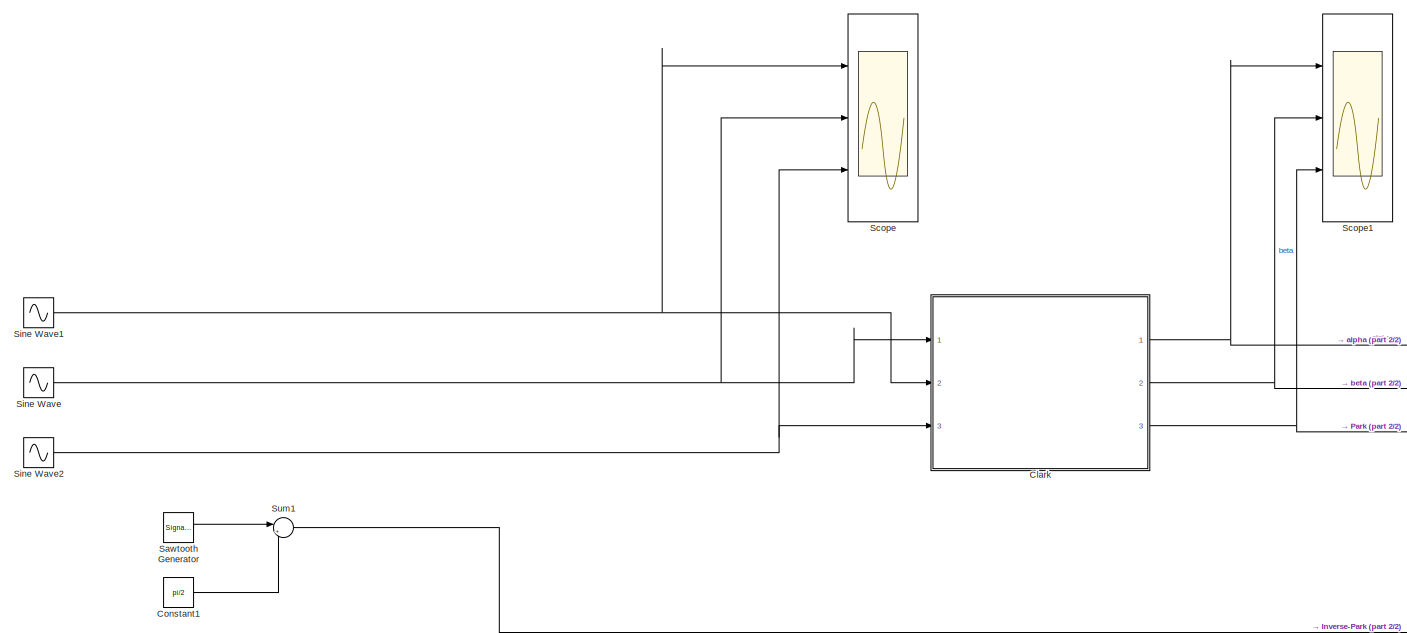
[diagram: root canvas - part 1/2, left side, full height]
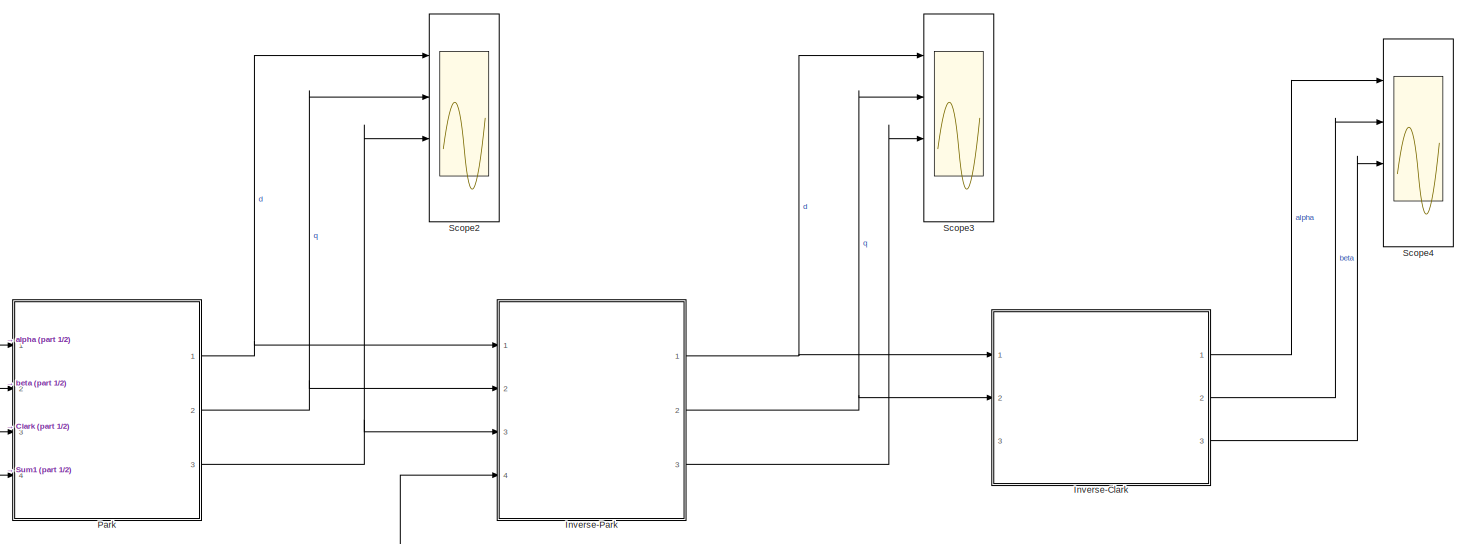
[diagram: root canvas - part 2/2, right side, full height]
MODEL slx_5975b5542c4c
KIND model
CONFIG AbsTol = auto
CONFIG EnableMultiTasking = off
CONFIG FixedStep = auto
CONFIG MaxStep = 1e-4
CONFIG MinStep = auto
CONFIG RelTol = 1e-3
CONFIG SampleTimeConstraint = Unconstrained
CONFIG Solver = VariableStepAuto
CONFIG SolverName = VariableStepAuto
CONFIG StartTime = 0.0
CONFIG StopTime = 0.05
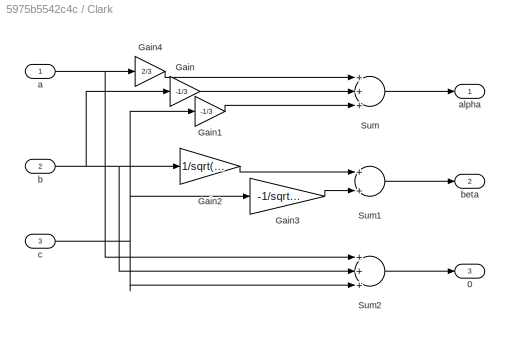
BLOCK [SubSystem] Clark
  Ports = [3, 3]
  RequestExecContextInheritance = off
BLOCK [Outport] Clark/0
  IconDisplay = Port number
  Port = 3
BLOCK [Gain] Clark/Gain
  Gain = -1/3
  OutDataTypeStr = Inherit: Inherit via internal rule
  ParamDataTypeStr = Inherit: Inherit via internal rule
  SaturateOnIntegerOverflow = off
BLOCK [Gain] Clark/Gain1
  Gain = -1/3
  OutDataTypeStr = Inherit: Inherit via internal rule
  ParamDataTypeStr = Inherit: Inherit via internal rule
  SaturateOnIntegerOverflow = off
BLOCK [Gain] Clark/Gain2
  Gain = 1/sqrt(3)
  OutDataTypeStr = Inherit: Inherit via internal rule
  ParamDataTypeStr = Inherit: Inherit via internal rule
  SaturateOnIntegerOverflow = off
BLOCK [Gain] Clark/Gain3
  Gain = -1/sqrt(3)
  OutDataTypeStr = Inherit: Inherit via internal rule
  ParamDataTypeStr = Inherit: Inherit via internal rule
  SaturateOnIntegerOverflow = off
BLOCK [Gain] Clark/Gain4
  Gain = 2/3
  OutDataTypeStr = Inherit: Inherit via internal rule
  ParamDataTypeStr = Inherit: Inherit via internal rule
  SaturateOnIntegerOverflow = off
BLOCK [Sum] Clark/Sum
  InputSameDT = off
  Inputs = +++
  OutDataTypeStr = Inherit: Inherit via internal rule
  Ports = [3, 1]
  SaturateOnIntegerOverflow = off
BLOCK [Sum] Clark/Sum1
  InputSameDT = off
  OutDataTypeStr = Inherit: Inherit via internal rule
  Ports = [2, 1]
  SaturateOnIntegerOverflow = off
BLOCK [Sum] Clark/Sum2
  InputSameDT = off
  Inputs = +++
  OutDataTypeStr = Inherit: Inherit via internal rule
  Ports = [3, 1]
  SaturateOnIntegerOverflow = off
BLOCK [Inport] Clark/a
  IconDisplay = Port number
BLOCK [Outport] Clark/alpha
  IconDisplay = Port number
BLOCK [Inport] Clark/b
  IconDisplay = Port number
  Port = 2
BLOCK [Outport] Clark/beta
  IconDisplay = Port number
  Port = 2
BLOCK [Inport] Clark/c
  IconDisplay = Port number
  Port = 3
BLOCK [Constant] Constant1
  Value = pi/2
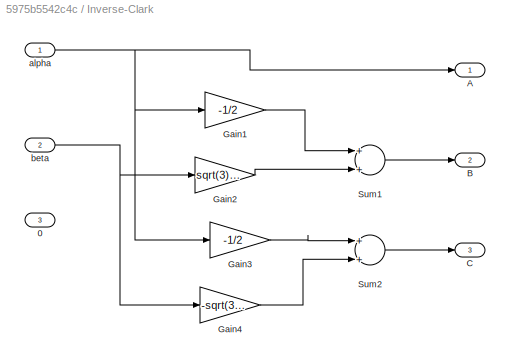
BLOCK [SubSystem] Inverse-Clark
  Ports = [3, 3]
  RequestExecContextInheritance = off
BLOCK [Inport] Inverse-Clark/0
  IconDisplay = Port number
  Port = 3
BLOCK [Outport] Inverse-Clark/A
  IconDisplay = Port number
BLOCK [Outport] Inverse-Clark/B
  IconDisplay = Port number
  Port = 2
BLOCK [Outport] Inverse-Clark/C
  IconDisplay = Port number
  Port = 3
BLOCK [Gain] Inverse-Clark/Gain1
  Gain = -1/2
  OutDataTypeStr = Inherit: Inherit via internal rule
  ParamDataTypeStr = Inherit: Inherit via internal rule
  SaturateOnIntegerOverflow = off
BLOCK [Gain] Inverse-Clark/Gain2
  Gain = sqrt(3)/2
  OutDataTypeStr = Inherit: Inherit via internal rule
  ParamDataTypeStr = Inherit: Inherit via internal rule
  SaturateOnIntegerOverflow = off
BLOCK [Gain] Inverse-Clark/Gain3
  Gain = -1/2
  OutDataTypeStr = Inherit: Inherit via internal rule
  ParamDataTypeStr = Inherit: Inherit via internal rule
  SaturateOnIntegerOverflow = off
BLOCK [Gain] Inverse-Clark/Gain4
  Gain = -sqrt(3)/2
  OutDataTypeStr = Inherit: Inherit via internal rule
  ParamDataTypeStr = Inherit: Inherit via internal rule
  SaturateOnIntegerOverflow = off
BLOCK [Sum] Inverse-Clark/Sum1
  InputSameDT = off
  OutDataTypeStr = Inherit: Inherit via internal rule
  Ports = [2, 1]
  SaturateOnIntegerOverflow = off
BLOCK [Sum] Inverse-Clark/Sum2
  InputSameDT = off
  OutDataTypeStr = Inherit: Inherit via internal rule
  Ports = [2, 1]
  SaturateOnIntegerOverflow = off
BLOCK [Inport] Inverse-Clark/alpha
  IconDisplay = Port number
BLOCK [Inport] Inverse-Clark/beta
  IconDisplay = Port number
  Port = 2
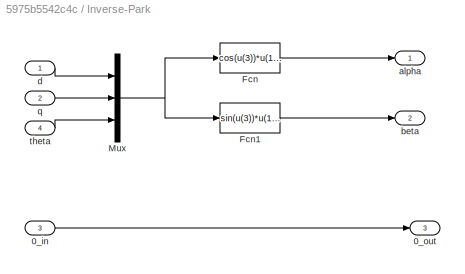
BLOCK [SubSystem] Inverse-Park
  Ports = [4, 3]
  RequestExecContextInheritance = off
BLOCK [Inport] Inverse-Park/0_in
  IconDisplay = Port number
  Port = 3
BLOCK [Outport] Inverse-Park/0_out
  IconDisplay = Port number
  Port = 3
BLOCK [Fcn] Inverse-Park/Fcn
  Expr = cos(u(3))*u(1)-sin(u(3))*u(2)
BLOCK [Fcn] Inverse-Park/Fcn1
  Expr = sin(u(3))*u(1)+cos(u(3))*u(2)
BLOCK [Mux] Inverse-Park/Mux
  DisplayOption = bar
  Inputs = 3
  Ports = [3, 1]
BLOCK [Outport] Inverse-Park/alpha
  IconDisplay = Port number
BLOCK [Outport] Inverse-Park/beta
  IconDisplay = Port number
  Port = 2
BLOCK [Inport] Inverse-Park/d
  IconDisplay = Port number
BLOCK [Inport] Inverse-Park/q
  IconDisplay = Port number
  Port = 2
BLOCK [Inport] Inverse-Park/theta
  IconDisplay = Port number
  Port = 4
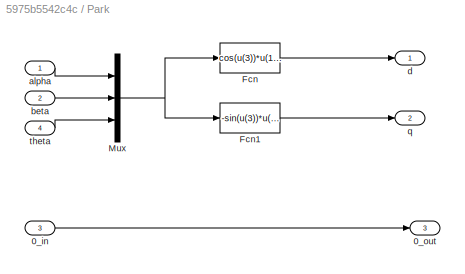
BLOCK [SubSystem] Park
  Ports = [4, 3]
  RequestExecContextInheritance = off
BLOCK [Inport] Park/0_in
  IconDisplay = Port number
  Port = 3
BLOCK [Outport] Park/0_out
  IconDisplay = Port number
  Port = 3
BLOCK [Fcn] Park/Fcn
  Expr = cos(u(3))*u(1)+sin(u(3))*u(2)
BLOCK [Fcn] Park/Fcn1
  Expr = -sin(u(3))*u(1)+cos(u(3))*u(2)
BLOCK [Mux] Park/Mux
  DisplayOption = bar
  Inputs = 3
  Ports = [3, 1]
BLOCK [Inport] Park/alpha
  IconDisplay = Port number
BLOCK [Inport] Park/beta
  IconDisplay = Port number
  Port = 2
BLOCK [Outport] Park/d
  IconDisplay = Port number
BLOCK [Outport] Park/q
  IconDisplay = Port number
  Port = 2
BLOCK [Inport] Park/theta
  IconDisplay = Port number
  Port = 4
BLOCK [SignalGenerator] Sawtooth Generator
  Amplitude = -pi
  Frequency = 100*2*pi
  Ports = [0, 1]
  Units = rad/sec
  WaveForm = sawtooth
BLOCK [Scope] Scope
  Floating = off
  NumInputPorts = 3
  Ports = [3]
  ScopeSpecificationString = Simulink.scopes.TimeScopeBlockCfg('CurrentConfiguration', extmgr.ConfigurationSet(extmgr.Configuration('Core','General UI',true),extmgr.Configuration('Core','Source UI',true),extmgr.Configuration('Sources','WiredSimulink',true),extmgr.Configuration('Visuals','Time Domain',true,'SerializedDisplays',{struct('MinYLimReal','-250.00000','MaxYLimReal','250.00000','YLabelReal','','MinYLimMag',' 0.00000',...<+1394ch>
BLOCK [Scope] Scope1
  Floating = off
  NumInputPorts = 3
  Ports = [3]
  ScopeSpecificationString = Simulink.scopes.TimeScopeBlockCfg('CurrentConfiguration', extmgr.ConfigurationSet(extmgr.Configuration('Core','General UI',true),extmgr.Configuration('Core','Source UI',true),extmgr.Configuration('Sources','WiredSimulink',true,'DataLoggingVariableName','ScopeData1'),extmgr.Configuration('Visuals','Time Domain',true,'SerializedDisplays',{struct('MinYLimReal','-250.00000','MaxYLimReal','250.00000','...<+1850ch>
BLOCK [Scope] Scope2
  Floating = off
  NumInputPorts = 4
  Ports = [4]
  ScopeSpecificationString = Simulink.scopes.TimeScopeBlockCfg('CurrentConfiguration', extmgr.ConfigurationSet(extmgr.Configuration('Core','General UI',true),extmgr.Configuration('Core','Source UI',true),extmgr.Configuration('Sources','WiredSimulink',true,'DataLoggingVariableName','ScopeData2'),extmgr.Configuration('Visuals','Time Domain',true,'SerializedDisplays',{struct('MinYLimReal','-25.00000','MaxYLimReal','225.00000','Y...<+1942ch>
BLOCK [Scope] Scope3
  Floating = off
  NumInputPorts = 4
  Ports = [4]
  ScopeSpecificationString = Simulink.scopes.TimeScopeBlockCfg('CurrentConfiguration', extmgr.ConfigurationSet(extmgr.Configuration('Core','General UI',true),extmgr.Configuration('Core','Source UI',true),extmgr.Configuration('Sources','WiredSimulink',true,'DataLoggingVariableName','ScopeData3'),extmgr.Configuration('Visuals','Time Domain',true,'SerializedDisplays',{struct('MinYLimReal','-250.00000','MaxYLimReal','250.00000','...<+1929ch>
BLOCK [Scope] Scope4
  Floating = off
  NumInputPorts = 4
  Ports = [4]
  ScopeSpecificationString = Simulink.scopes.TimeScopeBlockCfg('CurrentConfiguration', extmgr.ConfigurationSet(extmgr.Configuration('Core','General UI',true),extmgr.Configuration('Core','Source UI',true),extmgr.Configuration('Sources','WiredSimulink',true,'DataLoggingVariableName','ScopeData4'),extmgr.Configuration('Visuals','Time Domain',true,'SerializedDisplays',{struct('MinYLimReal','-1.32147','MaxYLimReal','1.89494','YLab...<+1923ch>
BLOCK [Sin] Sine Wave
  Amplitude = 200
  Frequency = 2*pi*100
  Ports = [0, 1]
  SampleTime = 0
BLOCK [Sin] Sine Wave1
  Amplitude = 200
  Frequency = 2*pi*100
  Phase = -2*pi/3
  Ports = [0, 1]
  SampleTime = 0
BLOCK [Sin] Sine Wave2
  Amplitude = 200
  Frequency = 2*pi*100
  Phase = +2*pi/3
  Ports = [0, 1]
  SampleTime = 0
BLOCK [Sum] Sum1
  IconShape = round
  InputSameDT = off
  Inputs = |++
  OutDataTypeStr = Inherit: Inherit via internal rule
  Ports = [2, 1]
  SaturateOnIntegerOverflow = off
LINE Clark/Gain1:1 -> Clark/Sum:3
LINE Clark/Gain2:1 -> Clark/Sum1:1
LINE Clark/Gain3:1 -> Clark/Sum1:2
LINE Clark/Gain4:1 -> Clark/Sum:1
LINE Clark/Gain:1 -> Clark/Sum:2
LINE Clark/Sum1:1 -> Clark/beta:1
LINE Clark/Sum2:1 -> Clark/0:1
LINE Clark/Sum:1 -> Clark/alpha:1
NET Clark/a:1 -> Clark/Gain4:1, Clark/Sum2:1
NET Clark/b:1 -> Clark/Gain2:1, Clark/Gain:1, Clark/Sum2:2
NET Clark/c:1 -> Clark/Gain1:1, Clark/Gain3:1, Clark/Sum2:3
NET Clark:1 -> Park:1, Scope1:1
NET Clark:2 -> Park:2, Scope1:2
NET Clark:3 -> Park:3, Scope1:3
LINE Constant1:1 -> Sum1:2
LINE Inverse-Clark/Gain1:1 -> Inverse-Clark/Sum1:1
LINE Inverse-Clark/Gain2:1 -> Inverse-Clark/Sum1:2
LINE Inverse-Clark/Gain3:1 -> Inverse-Clark/Sum2:1
LINE Inverse-Clark/Gain4:1 -> Inverse-Clark/Sum2:2
LINE Inverse-Clark/Sum1:1 -> Inverse-Clark/B:1
LINE Inverse-Clark/Sum2:1 -> Inverse-Clark/C:1
NET Inverse-Clark/alpha:1 -> Inverse-Clark/A:1, Inverse-Clark/Gain1:1, Inverse-Clark/Gain3:1
NET Inverse-Clark/beta:1 -> Inverse-Clark/Gain2:1, Inverse-Clark/Gain4:1
LINE Inverse-Clark:1 -> Scope4:1
LINE Inverse-Clark:2 -> Scope4:2
LINE Inverse-Clark:3 -> Scope4:3
LINE Inverse-Park/0_in:1 -> Inverse-Park/0_out:1
LINE Inverse-Park/Fcn1:1 -> Inverse-Park/beta:1
LINE Inverse-Park/Fcn:1 -> Inverse-Park/alpha:1
NET Inverse-Park/Mux:1 -> Inverse-Park/Fcn1:1, Inverse-Park/Fcn:1
LINE Inverse-Park/d:1 -> Inverse-Park/Mux:1
LINE Inverse-Park/q:1 -> Inverse-Park/Mux:2
LINE Inverse-Park/theta:1 -> Inverse-Park/Mux:3
NET Inverse-Park:1 -> Inverse-Clark:1, Scope3:1
NET Inverse-Park:2 -> Inverse-Clark:2, Scope3:2
LINE Inverse-Park:3 -> Scope3:3
LINE Park/0_in:1 -> Park/0_out:1
LINE Park/Fcn1:1 -> Park/q:1
LINE Park/Fcn:1 -> Park/d:1
NET Park/Mux:1 -> Park/Fcn1:1, Park/Fcn:1
LINE Park/alpha:1 -> Park/Mux:1
LINE Park/beta:1 -> Park/Mux:2
LINE Park/theta:1 -> Park/Mux:3
NET Park:1 -> Inverse-Park:1, Scope2:1
NET Park:2 -> Inverse-Park:2, Scope2:2
NET Park:3 -> Inverse-Park:3, Scope2:3
LINE Sawtooth Generator:1 -> Sum1:1
NET Sine Wave1:1 -> Clark:2, Scope:1
NET Sine Wave2:1 -> Clark:3, Scope:3
NET Sine Wave:1 -> Clark:1, Scope:2
NET Sum1:1 -> Inverse-Park:4, Park:4
note: NET lines group one-source signal fan-out (src -> all destinations, sorted); 1:1 wires keep LINE
